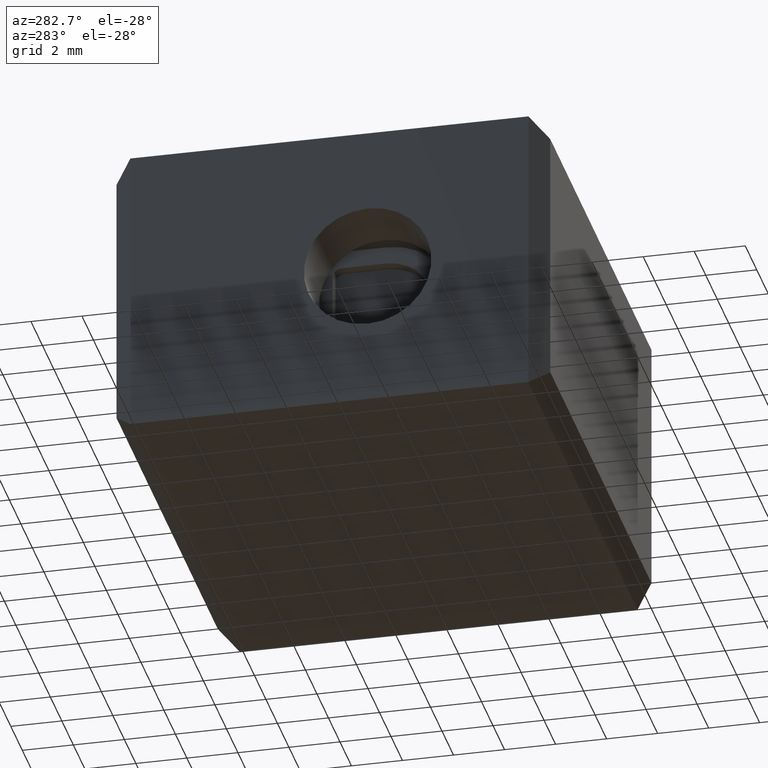
[diagram: clean part render]
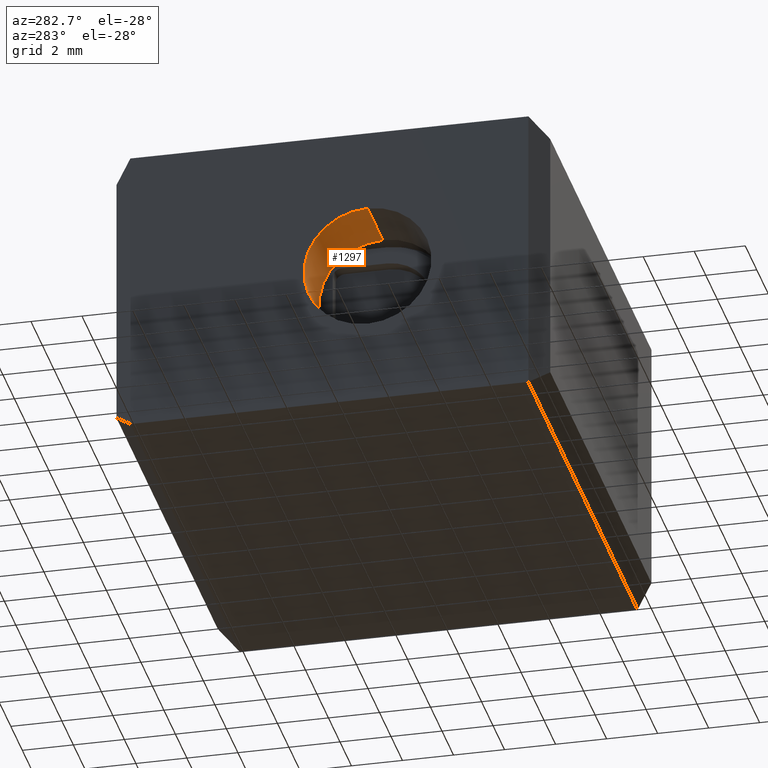
[diagram: same view with one face highlighted and labeled with its STEP entity id]
A machine part, auxiliary view. The second image highlights one B-rep face of the part: STEP entity #1297.
In plain terms, the highlighted cylindrical surface (partial cylindrical patch) has radius 2.5 mm, axis along (1, 0, 0).
Its self-contained STEP definition (entity closure, byte-faithful):
#36 = ORIENTED_EDGE ( 'NONE', *, *, #1171, .F. ) ;
#60 = ORIENTED_EDGE ( 'NONE', *, *, #1051, .T. ) ;
#61 = ORIENTED_EDGE ( 'NONE', *, *, #1010, .F. ) ;
#80 = ORIENTED_EDGE ( 'NONE', *, *, #1194, .T. ) ;
#316 = CARTESIAN_POINT ( 'NONE',  ( 2.403805710850901000, 7.000000000000000000, -2.999883141892534200 ) ) ;
#369 = CARTESIAN_POINT ( 'NONE',  ( -0.2461942891490986900, 7.000000000000000000, -7.999883141892539100 ) ) ;
#379 = CARTESIAN_POINT ( 'NONE',  ( -0.2461942891490986900, 7.000000000000000000, -2.999883141892534200 ) ) ;
#394 = CARTESIAN_POINT ( 'NONE',  ( 2.403805710850901000, 7.000000000000000000, -7.999883141892539100 ) ) ;
#416 = CARTESIAN_POINT ( 'NONE',  ( -6.246194289149098500, 7.000000000000000000, -2.999883141892534200 ) ) ;
#420 = LINE ( 'NONE', #416, #1373 ) ;
#433 = DIRECTION ( 'NONE',  ( 1.000000000000000000, 0.0000000000000000000, 0.0000000000000000000 ) ) ;
#567 = VERTEX_POINT ( 'NONE', #316 ) ;
#601 = VERTEX_POINT ( 'NONE', #379 ) ;
#609 = VERTEX_POINT ( 'NONE', #369 ) ;
#631 = VERTEX_POINT ( 'NONE', #394 ) ;
#735 = EDGE_LOOP ( 'NONE', ( #61, #80, #60, #36 ) ) ;
#1010 = EDGE_CURVE ( 'NONE', #601, #567, #420, .T. ) ;
#1051 = EDGE_CURVE ( 'NONE', #609, #631, #2751, .T. ) ;
#1171 = EDGE_CURVE ( 'NONE', #567, #631, #1558, .T. ) ;
#1194 = EDGE_CURVE ( 'NONE', #601, #609, #1597, .T. ) ;
#1297 = ADVANCED_FACE ( 'NONE', ( #2648 ), #2644, .F. ) ;
#1373 = VECTOR ( 'NONE', #433, 1000.000000000000000 ) ;
#1413 = VECTOR ( 'NONE', #2759, 1000.000000000000000 ) ;
#1531 = AXIS2_PLACEMENT_3D ( 'NONE', #2094, #2084, #2079 ) ;
#1558 = CIRCLE ( 'NONE', #1531, 2.500000000000002200 ) ;
#1597 = CIRCLE ( 'NONE', #1611, 2.500000000000002200 ) ;
#1611 = AXIS2_PLACEMENT_3D ( 'NONE', #2140, #2144, #2127 ) ;
#1690 = AXIS2_PLACEMENT_3D ( 'NONE', #2627, #2633, #2638 ) ;
#2079 = DIRECTION ( 'NONE',  ( 0.0000000000000000000, 0.0000000000000000000, -1.000000000000000000 ) ) ;
#2084 = DIRECTION ( 'NONE',  ( -1.000000000000000000, -0.0000000000000000000, -0.0000000000000000000 ) ) ;
#2094 = CARTESIAN_POINT ( 'NONE',  ( 2.403805710850901000, 7.000000000000000000, -5.499883141892536500 ) ) ;
#2127 = DIRECTION ( 'NONE',  ( 0.0000000000000000000, 0.0000000000000000000, -1.000000000000000000 ) ) ;
#2140 = CARTESIAN_POINT ( 'NONE',  ( -0.2461942891490986900, 7.000000000000000000, -5.499883141892536500 ) ) ;
#2144 = DIRECTION ( 'NONE',  ( -1.000000000000000000, -0.0000000000000000000, -0.0000000000000000000 ) ) ;
#2627 = CARTESIAN_POINT ( 'NONE',  ( -6.246194289149098500, 7.000000000000000000, -5.499883141892536500 ) ) ;
#2633 = DIRECTION ( 'NONE',  ( 1.000000000000000000, 0.0000000000000000000, 0.0000000000000000000 ) ) ;
#2638 = DIRECTION ( 'NONE',  ( 0.0000000000000000000, 0.0000000000000000000, -1.000000000000000000 ) ) ;
#2644 = CYLINDRICAL_SURFACE ( 'NONE', #1690, 2.500000000000002200 ) ;
#2648 = FACE_OUTER_BOUND ( 'NONE', #735, .T. ) ;
#2747 = CARTESIAN_POINT ( 'NONE',  ( -6.246194289149098500, 7.000000000000000000, -7.999883141892539100 ) ) ;
#2751 = LINE ( 'NONE', #2747, #1413 ) ;
#2759 = DIRECTION ( 'NONE',  ( 1.000000000000000000, 0.0000000000000000000, 0.0000000000000000000 ) ) ;